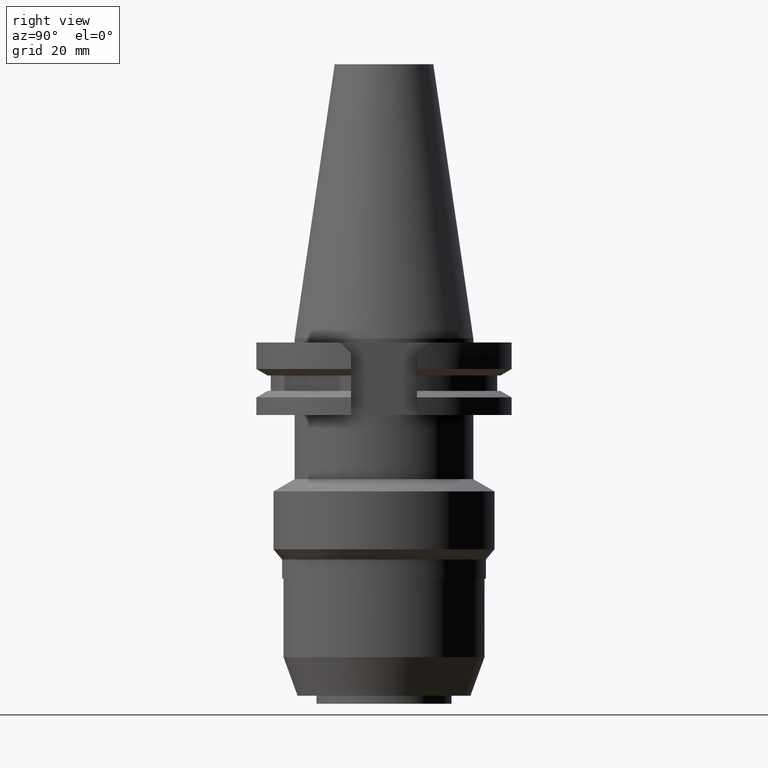
[diagram: clean part render]
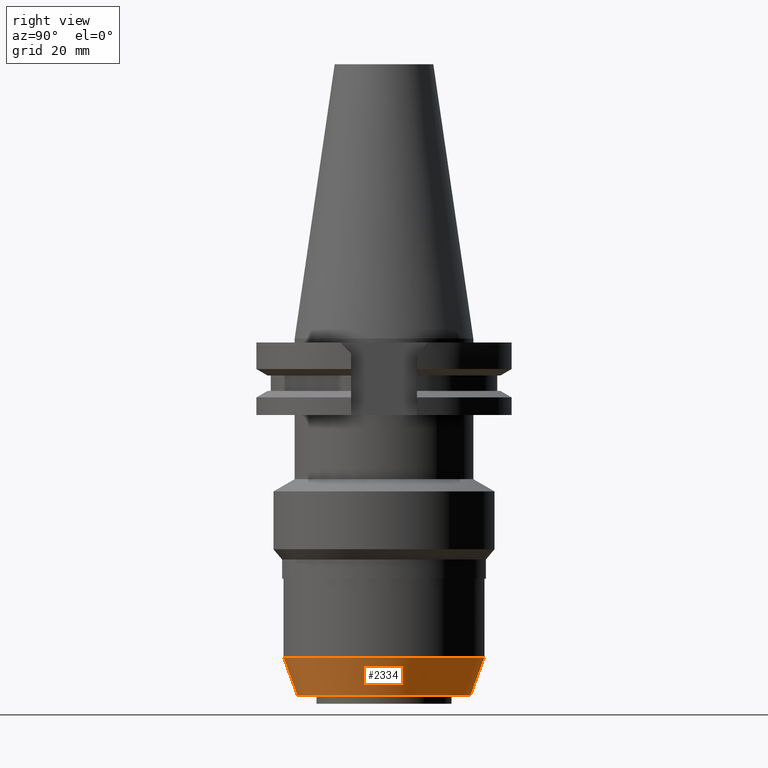
[diagram: same view with one face highlighted and labeled with its STEP entity id]
A machine part, right view. The second image highlights one B-rep face of the part: STEP entity #2334.
In plain terms, the highlighted conical surface has half-angle 20 deg.
Its self-contained STEP definition (entity closure, byte-faithful):
#1028=DIRECTION('',(0.E0,-3.420201433258E-1,-9.396926207858E-1));
#1029=VECTOR('',#1028,1.021610661577E1);
#1030=CARTESIAN_POINT('',(0.E0,2.5E1,-7.93E1));
#1031=LINE('',#1030,#1029);
#1035=CARTESIAN_POINT('',(0.E0,0.E0,-7.93E1));
#1036=DIRECTION('',(0.E0,0.E0,1.E0));
#1037=DIRECTION('',(0.E0,-1.E0,0.E0));
#1038=AXIS2_PLACEMENT_3D('',#1035,#1036,#1037);
#1051=DIRECTION('',(0.E0,3.420201433258E-1,-9.396926207859E-1));
#1052=VECTOR('',#1051,1.021610661577E1);
#1053=CARTESIAN_POINT('',(0.E0,-2.5E1,-7.93E1));
#1054=LINE('',#1053,#1052);
#1058=CARTESIAN_POINT('',(0.E0,0.E0,-8.89E1));
#1059=DIRECTION('',(0.E0,0.E0,1.E0));
#1060=DIRECTION('',(0.E0,-1.E0,0.E0));
#1061=AXIS2_PLACEMENT_3D('',#1058,#1059,#1060);
#1366=CARTESIAN_POINT('',(0.E0,-2.150588575104E1,-8.89E1));
#1367=CARTESIAN_POINT('',(0.E0,2.150588575104E1,-8.89E1));
#1368=VERTEX_POINT('',#1366);
#1369=VERTEX_POINT('',#1367);
#1370=CARTESIAN_POINT('',(0.E0,2.5E1,-7.93E1));
#1371=VERTEX_POINT('',#1370);
#1372=CARTESIAN_POINT('',(0.E0,-2.5E1,-7.93E1));
#1373=VERTEX_POINT('',#1372);
#2320=CARTESIAN_POINT('',(0.E0,0.E0,-8.41E1));
#2321=DIRECTION('',(0.E0,0.E0,1.E0));
#2322=DIRECTION('',(0.E0,1.E0,0.E0));
#2323=AXIS2_PLACEMENT_3D('',#2320,#2321,#2322);
#2324=CONICAL_SURFACE('',#2323,2.325294287552E1,2.E1);
#2326=ORIENTED_EDGE('',*,*,#2325,.T.);
#2328=ORIENTED_EDGE('',*,*,#2327,.F.);
#2330=ORIENTED_EDGE('',*,*,#2329,.F.);
#2331=ORIENTED_EDGE('',*,*,#2313,.T.);
#2332=EDGE_LOOP('',(#2326,#2328,#2330,#2331));
#2333=FACE_OUTER_BOUND('',#2332,.F.);
#1039=CIRCLE('',#1038,2.5E1);
#1062=CIRCLE('',#1061,2.150588575104E1);
#2313=EDGE_CURVE('',#1373,#1371,#1039,.T.);
#2325=EDGE_CURVE('',#1371,#1369,#1031,.T.);
#2327=EDGE_CURVE('',#1368,#1369,#1062,.T.);
#2329=EDGE_CURVE('',#1373,#1368,#1054,.T.);
#2334=ADVANCED_FACE('',(#2333),#2324,.T.);